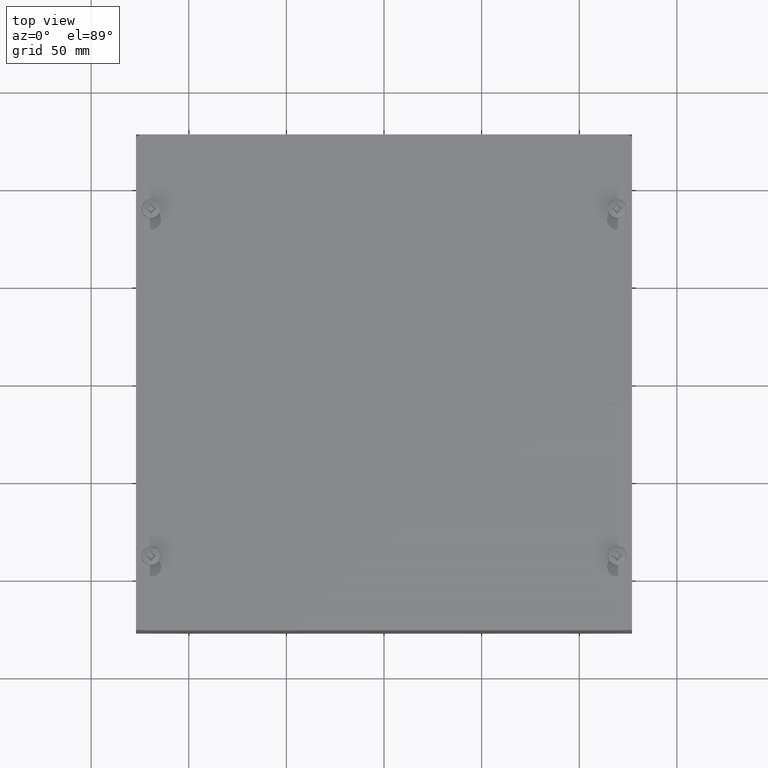
[diagram: clean part render]
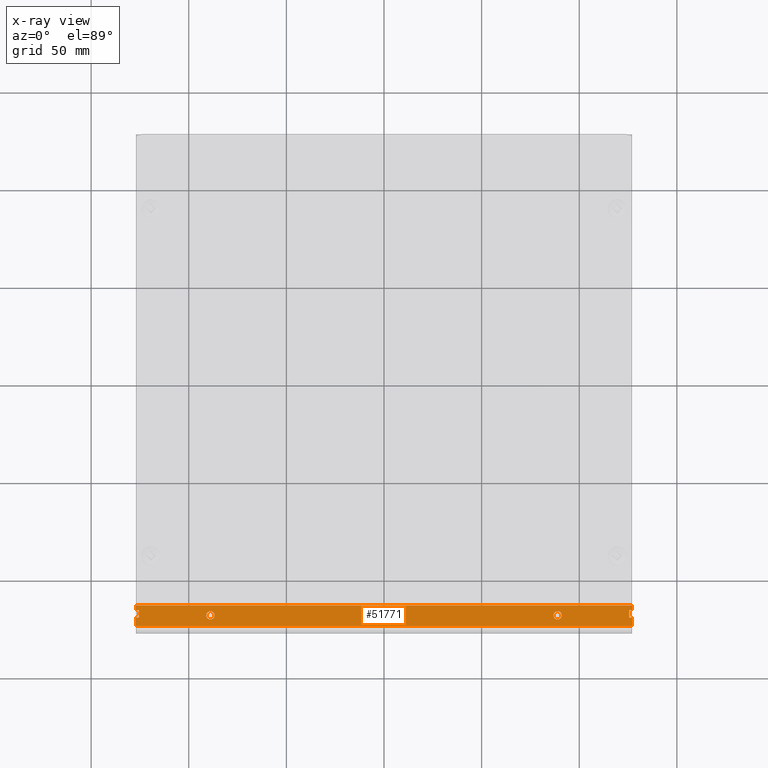
[diagram: x-ray — body ghosted, one internal face saturated and labeled with its STEP entity id]
A machine part, top view, then the same camera in x-ray: the body is ghosted and one INTERNAL B-rep face — a face not visible from any outside direction — is saturated and labeled: STEP entity #51771.
In plain terms, the highlighted planar face has unit normal (-0, 0, -1).
Its self-contained STEP definition (entity closure, byte-faithful):
#4078=FACE_BOUND('',#9131,.T.);
#4079=FACE_BOUND('',#9132,.T.);
#4521=PLANE('',#54776);
#6336=FACE_OUTER_BOUND('',#9130,.T.);
#9130=EDGE_LOOP('',(#36550,#36551,#36552,#36553,#36554,#36555,#36556,#36557,
#36558,#36559,#36560,#36561));
#9131=EDGE_LOOP('',(#36562));
#9132=EDGE_LOOP('',(#36563));
#12361=LINE('',#68856,#17866);
#12365=LINE('',#68864,#17870);
#12368=LINE('',#68870,#17873);
#12381=LINE('',#68898,#17886);
#12385=LINE('',#68906,#17890);
#12388=LINE('',#68912,#17893);
#12403=LINE('',#68942,#17908);
#12407=LINE('',#68951,#17912);
#12408=LINE('',#68952,#17913);
#12409=LINE('',#68954,#17914);
#12410=LINE('',#68956,#17915);
#12411=LINE('',#68957,#17916);
#17866=VECTOR('',#57683,0.393700787401575);
#17870=VECTOR('',#57689,0.393700787401575);
#17873=VECTOR('',#57694,0.393700787401575);
#17886=VECTOR('',#57715,0.393700787401575);
#17890=VECTOR('',#57721,0.393700787401575);
#17893=VECTOR('',#57726,0.393700787401575);
#17908=VECTOR('',#57749,0.393700787401575);
#17912=VECTOR('',#57757,0.393700787401575);
#17913=VECTOR('',#57758,0.393700787401575);
#17914=VECTOR('',#57759,0.393700787401575);
#17915=VECTOR('',#57760,0.393700787401575);
#17916=VECTOR('',#57761,0.393700787401575);
#23317=CIRCLE('',#54777,0.0825);
#23318=CIRCLE('',#54778,0.0825);
#23987=VERTEX_POINT('',#68854);
#23988=VERTEX_POINT('',#68855);
#23991=VERTEX_POINT('',#68863);
#23993=VERTEX_POINT('',#68869);
#24003=VERTEX_POINT('',#68896);
#24004=VERTEX_POINT('',#68897);
#24007=VERTEX_POINT('',#68905);
#24009=VERTEX_POINT('',#68911);
#24020=VERTEX_POINT('',#68940);
#24023=VERTEX_POINT('',#68950);
#24024=VERTEX_POINT('',#68953);
#24025=VERTEX_POINT('',#68955);
#24026=VERTEX_POINT('',#68958);
#24027=VERTEX_POINT('',#68960);
#28962=EDGE_CURVE('',#23987,#23988,#12361,.T.);
#28966=EDGE_CURVE('',#23991,#23987,#12365,.T.);
#28969=EDGE_CURVE('',#23988,#23993,#12368,.T.);
#28982=EDGE_CURVE('',#24003,#24004,#12381,.T.);
#28986=EDGE_CURVE('',#24007,#24003,#12385,.T.);
#28989=EDGE_CURVE('',#24009,#24007,#12388,.T.);
#29004=EDGE_CURVE('',#23993,#24020,#12403,.T.);
#29008=EDGE_CURVE('',#24020,#24023,#12407,.T.);
#29009=EDGE_CURVE('',#24009,#24023,#12408,.T.);
#29010=EDGE_CURVE('',#24024,#24004,#12409,.T.);
#29011=EDGE_CURVE('',#24024,#24025,#12410,.T.);
#29012=EDGE_CURVE('',#24025,#23991,#12411,.T.);
#29013=EDGE_CURVE('',#24026,#24026,#23317,.T.);
#29014=EDGE_CURVE('',#24027,#24027,#23318,.T.);
#36550=ORIENTED_EDGE('',*,*,#28966,.T.);
#36551=ORIENTED_EDGE('',*,*,#28962,.T.);
#36552=ORIENTED_EDGE('',*,*,#28969,.T.);
#36553=ORIENTED_EDGE('',*,*,#29004,.T.);
#36554=ORIENTED_EDGE('',*,*,#29008,.T.);
#36555=ORIENTED_EDGE('',*,*,#29009,.F.);
#36556=ORIENTED_EDGE('',*,*,#28989,.T.);
#36557=ORIENTED_EDGE('',*,*,#28986,.T.);
#36558=ORIENTED_EDGE('',*,*,#28982,.T.);
#36559=ORIENTED_EDGE('',*,*,#29010,.F.);
#36560=ORIENTED_EDGE('',*,*,#29011,.T.);
#36561=ORIENTED_EDGE('',*,*,#29012,.T.);
#36562=ORIENTED_EDGE('',*,*,#29013,.T.);
#36563=ORIENTED_EDGE('',*,*,#29014,.T.);
#51771=ADVANCED_FACE('',(#6336,#4078,#4079),#4521,.F.);
#54776=AXIS2_PLACEMENT_3D('',#68949,#57755,#57756);
#54777=AXIS2_PLACEMENT_3D('',#68959,#57762,#57763);
#54778=AXIS2_PLACEMENT_3D('',#68961,#57764,#57765);
#57683=DIRECTION('',(0.,1.,5.39030285815795E-15));
#57689=DIRECTION('',(-1.,-3.55955186645792E-46,3.45255089946489E-31));
#57694=DIRECTION('',(1.,3.55955186645792E-46,-3.45255089946489E-31));
#57715=DIRECTION('',(-1.,-3.55955186645792E-46,3.45255089946489E-31));
#57721=DIRECTION('',(0.,-1.,-5.39030285815795E-15));
#57726=DIRECTION('',(1.,3.55955186645792E-46,-3.45255089946489E-31));
#57749=DIRECTION('',(2.25600204030691E-14,1.,5.39030285815812E-15));
#57755=DIRECTION('center_axis',(-3.45255089946489E-31,5.39030285815796E-15,
-1.));
#57756=DIRECTION('ref_axis',(1.75198115615465E-32,1.,5.39030285815795E-15));
#57757=DIRECTION('',(-1.,1.75198115615464E-32,1.75198115615465E-32));
#57758=DIRECTION('',(6.76800612092073E-14,1.,5.39030285815812E-15));
#57759=DIRECTION('',(6.76800612092073E-14,1.,5.39030285815812E-15));
#57760=DIRECTION('',(1.,-1.75198115615446E-32,-3.45255089946489E-31));
#57761=DIRECTION('',(2.25600204030691E-14,1.,5.39030285815812E-15));
#57762=DIRECTION('center_axis',(-3.45255089946489E-31,5.39030285815796E-15,
-1.));
#57763=DIRECTION('ref_axis',(-1.,0.,0.));
#57764=DIRECTION('center_axis',(-3.45255089946489E-31,5.39030285815796E-15,
-1.));
#57765=DIRECTION('ref_axis',(-1.,0.,0.));
#68854=CARTESIAN_POINT('',(4.944,-4.74499999999998,4.00000000000005));
#68855=CARTESIAN_POINT('',(4.944,-4.59499999999998,4.00000000000005));
#68856=CARTESIAN_POINT('',(4.944,-4.74149983275464,4.));
#68863=CARTESIAN_POINT('',(5.,-4.74499999999998,4.00000000000005));
#68864=CARTESIAN_POINT('',(2.5,-4.74499999999998,4.));
#68869=CARTESIAN_POINT('',(5.,-4.59499999999998,4.00000000000005));
#68870=CARTESIAN_POINT('',(2.472,-4.59499999999998,4.));
#68896=CARTESIAN_POINT('',(-4.944,-4.74499999999998,4.00000000000005));
#68897=CARTESIAN_POINT('',(-5.,-4.74499999999998,4.00000000000005));
#68898=CARTESIAN_POINT('',(-2.472,-4.74499999999998,4.));
#68905=CARTESIAN_POINT('',(-4.944,-4.59499999999998,4.00000000000005));
#68906=CARTESIAN_POINT('',(-4.944,-4.66649983275464,4.));
#68911=CARTESIAN_POINT('',(-5.,-4.59499999999998,4.00000000000005));
#68912=CARTESIAN_POINT('',(-2.5,-4.59499999999998,4.));
#68940=CARTESIAN_POINT('',(5.,-4.5,4.));
#68942=CARTESIAN_POINT('',(5.,-4.97599933101859,4.));
#68949=CARTESIAN_POINT('Origin',(-2.62257407391769E-16,-4.7379996655093,
4.));
#68950=CARTESIAN_POINT('',(-5.,-4.5,4.));
#68951=CARTESIAN_POINT('',(5.,-4.5,4.));
#68952=CARTESIAN_POINT('',(-5.,-4.97599933101859,4.));
#68953=CARTESIAN_POINT('',(-4.99999999999999,-4.914,4.));
#68954=CARTESIAN_POINT('',(-5.,-4.97599933101859,4.));
#68955=CARTESIAN_POINT('',(5.,-4.914,4.));
#68956=CARTESIAN_POINT('',(-1.31128703695885E-16,-4.914,4.));
#68957=CARTESIAN_POINT('',(5.,-4.97599933101859,4.));
#68958=CARTESIAN_POINT('',(3.5825,-4.7,4.));
#68959=CARTESIAN_POINT('Origin',(3.5,-4.7,4.));
#68960=CARTESIAN_POINT('',(-3.4175,-4.7,4.));
#68961=CARTESIAN_POINT('Origin',(-3.5,-4.7,4.));